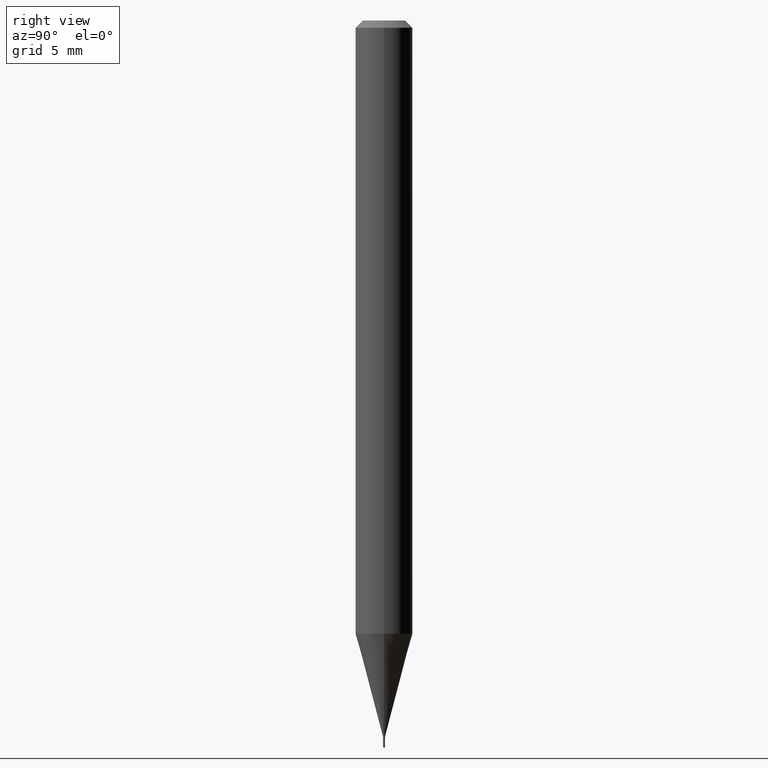
[diagram: clean part render]
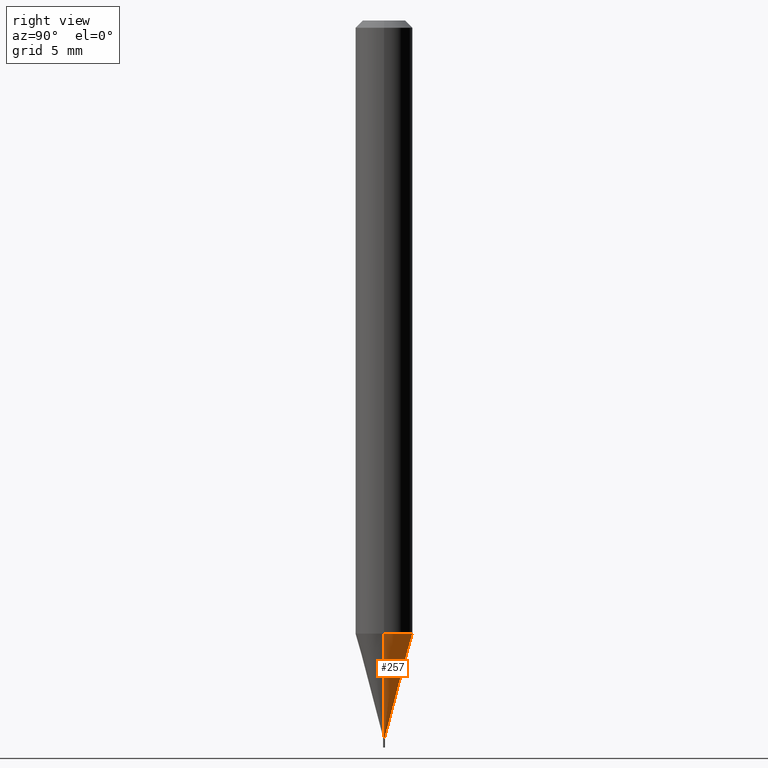
[diagram: same view with one face highlighted and labeled with its STEP entity id]
A machine part, right view. The second image highlights one B-rep face of the part: STEP entity #257.
In plain terms, the highlighted conical surface has half-angle 15 deg.
Its self-contained STEP definition (entity closure, byte-faithful):
#1 = CARTESIAN_POINT ( 'NONE',  ( 0.05904999999999999138, -4.829416634856539437E-15, -1.265099898887817487 ) ) ;
#21 = DIRECTION ( 'NONE',  ( 0.2588190451025213501, 1.565188264969621968E-15, 0.9659258262890682012 ) ) ;
#24 = CONICAL_SURFACE ( 'NONE', #245, 0.001949999999999922715, 0.2617993877991500740 ) ;
#27 = ORIENTED_EDGE ( 'NONE', *, *, #364, .T. ) ;
#28 = EDGE_LOOP ( 'NONE', ( #27, #284, #341, #268 ) ) ;
#38 = VECTOR ( 'NONE', #310, 39.37007874015747433 ) ;
#42 = CARTESIAN_POINT ( 'NONE',  ( -0.001949999999999922715, -4.572374667501720637E-15, -1.478200000000000180 ) ) ;
#65 = CARTESIAN_POINT ( 'NONE',  ( -0.05904999999999999138, -3.997497203272825813E-15, -1.265099898887817487 ) ) ;
#80 = DIRECTION ( 'NONE',  ( -2.445468806185136597E-29, 3.491481338843145583E-15, 1.000000000000000000 ) ) ;
#84 = EDGE_CURVE ( 'NONE', #369, #347, #190, .T. ) ;
#86 = CARTESIAN_POINT ( 'NONE',  ( 0.001949999999999922715, -5.174724492299425982E-15, -1.478200000000000180 ) ) ;
#98 = CARTESIAN_POINT ( 'NONE',  ( -0.001949999999999922715, -5.147252131730616249E-15, -1.478200000000000180 ) ) ;
#107 = EDGE_CURVE ( 'NONE', #462, #369, #415, .T. ) ;
#159 = CIRCLE ( 'NONE', #339, 0.001949999999999922715 ) ;
#163 = EDGE_CURVE ( 'NONE', #398, #347, #269, .T. ) ;
#166 = DIRECTION ( 'NONE',  ( 1.000000000000000000, -6.982962677686435527E-15, 0.000000000000000000 ) ) ;
#169 = DIRECTION ( 'NONE',  ( -2.445468806185136597E-29, 3.491481338843145583E-15, 1.000000000000000000 ) ) ;
#177 = VECTOR ( 'NONE', #21, 39.37007874015747433 ) ;
#190 = CIRCLE ( 'NONE', #252, 0.05904999999999999832 ) ;
#212 = FACE_OUTER_BOUND ( 'NONE', #28, .T. ) ;
#234 = CARTESIAN_POINT ( 'NONE',  ( 3.614891989302869289E-29, -5.161107715077938255E-15, -1.478200000000000180 ) ) ;
#238 = DIRECTION ( 'NONE',  ( 1.000000000000000000, -6.982962677686273021E-15, 0.000000000000000000 ) ) ;
#245 = AXIS2_PLACEMENT_3D ( 'NONE', #370, #169, #166 ) ;
#252 = AXIS2_PLACEMENT_3D ( 'NONE', #264, #80, #238 ) ;
#257 = ADVANCED_FACE ( 'NONE', ( #212 ), #24, .T. ) ;
#264 = CARTESIAN_POINT ( 'NONE',  ( 3.093762339438127959E-29, -4.417072688739165306E-15, -1.265099898887817487 ) ) ;
#268 = ORIENTED_EDGE ( 'NONE', *, *, #107, .F. ) ;
#269 = LINE ( 'NONE', #98, #38 ) ;
#284 = ORIENTED_EDGE ( 'NONE', *, *, #163, .T. ) ;
#310 = DIRECTION ( 'NONE',  ( -0.2588190451025213501, 5.211531920934551042E-15, 0.9659258262890682012 ) ) ;
#335 = CARTESIAN_POINT ( 'NONE',  ( 0.001949999999999922715, -5.174724492299425982E-15, -1.478200000000000180 ) ) ;
#339 = AXIS2_PLACEMENT_3D ( 'NONE', #234, #353, #435 ) ;
#341 = ORIENTED_EDGE ( 'NONE', *, *, #84, .F. ) ;
#347 = VERTEX_POINT ( 'NONE', #65 ) ;
#353 = DIRECTION ( 'NONE',  ( -2.445468806185136597E-29, 3.491481338843145583E-15, 1.000000000000000000 ) ) ;
#364 = EDGE_CURVE ( 'NONE', #462, #398, #159, .T. ) ;
#369 = VERTEX_POINT ( 'NONE', #1 ) ;
#370 = CARTESIAN_POINT ( 'NONE',  ( 3.614891989302869289E-29, -5.161107715077938255E-15, -1.478200000000000180 ) ) ;
#398 = VERTEX_POINT ( 'NONE', #42 ) ;
#415 = LINE ( 'NONE', #335, #177 ) ;
#435 = DIRECTION ( 'NONE',  ( 1.000000000000000000, -6.982962677686435527E-15, 0.000000000000000000 ) ) ;
#462 = VERTEX_POINT ( 'NONE', #86 ) ;